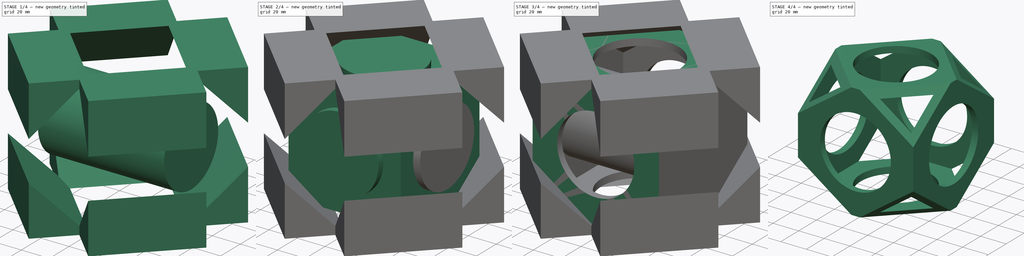
[diagram: build sequence overview — one tinted view per stage of 4, left to right]
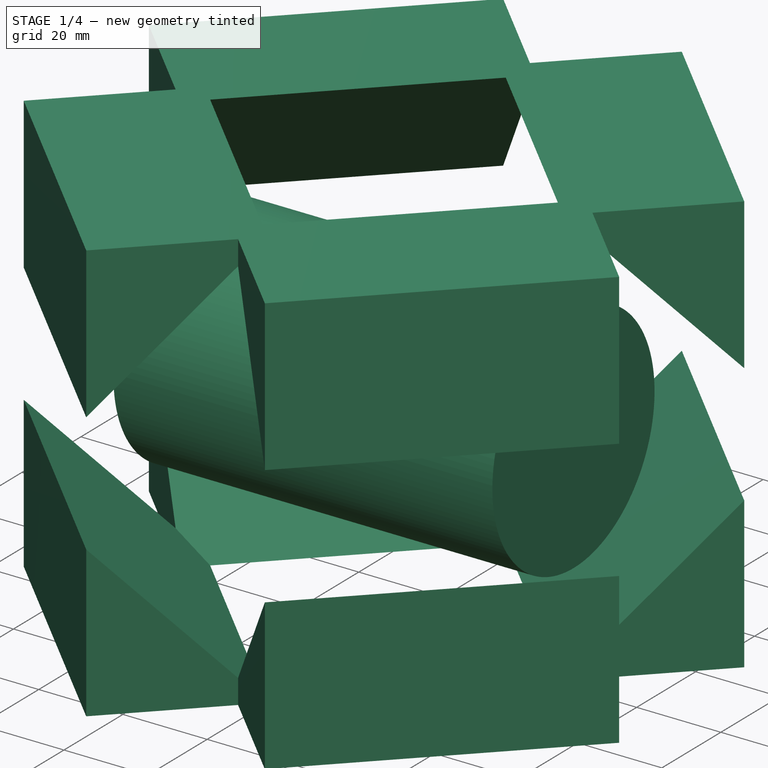
[diagram: stage 1 of 4 — iso view after this stage's code; geometry added in this stage tinted green]
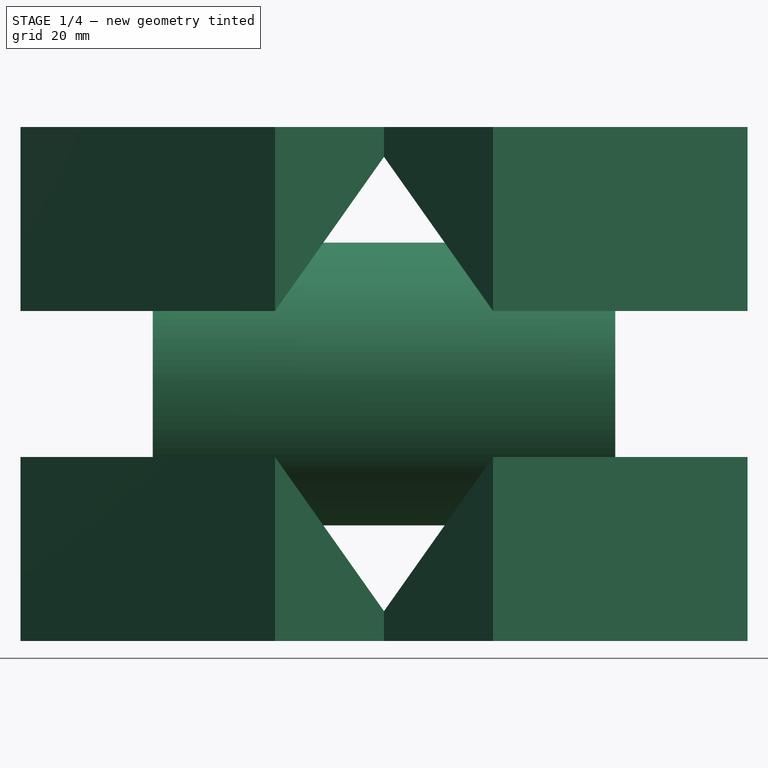
[diagram: stage 1 of 4 — front view after this stage's code; geometry added in this stage tinted green]
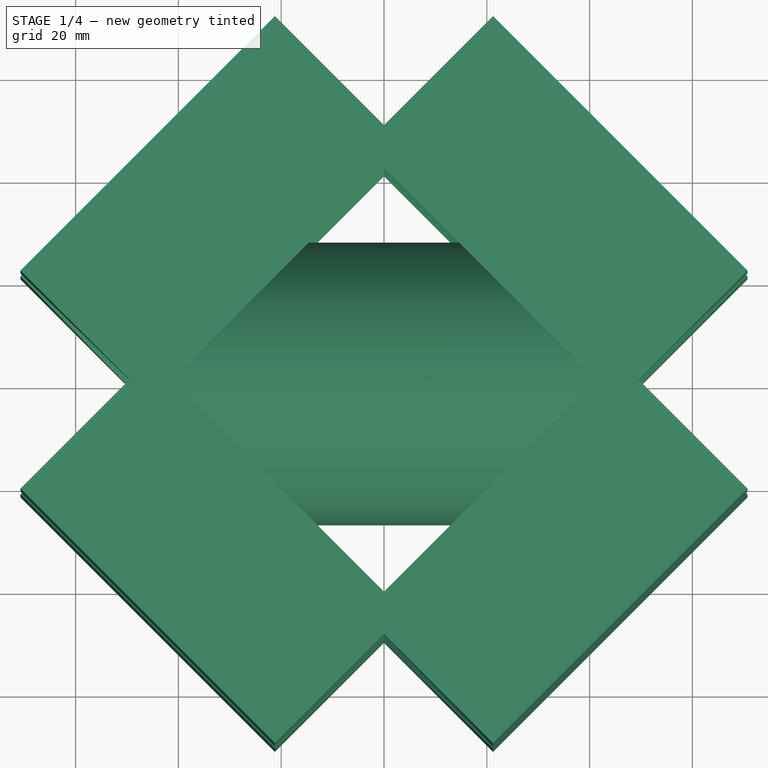
[diagram: stage 1 of 4 — top view after this stage's code; geometry added in this stage tinted green]
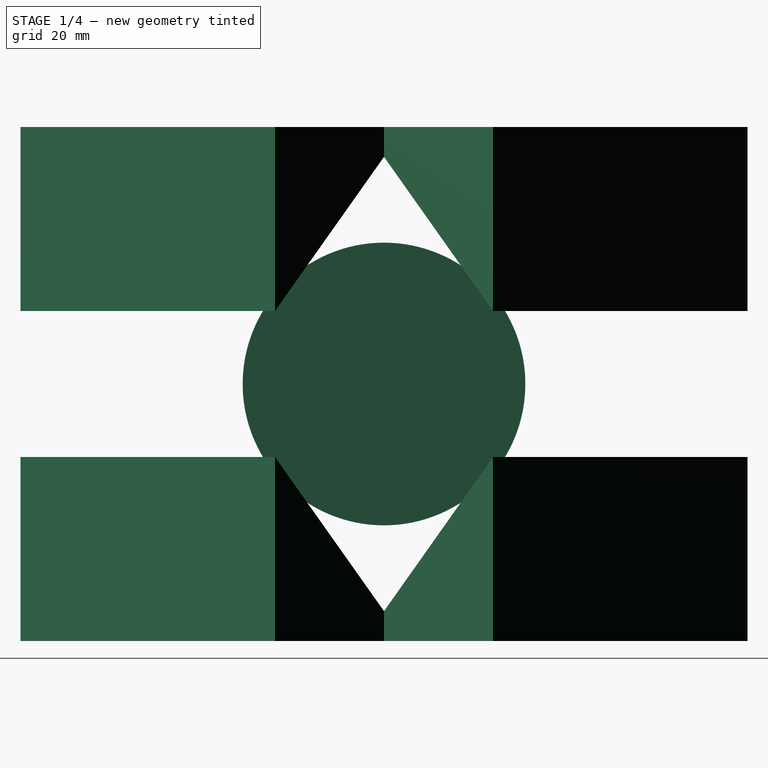
[diagram: stage 1 of 4 — right view after this stage's code; geometry added in this stage tinted green]
FCSTD DOCUMENT  (FreeCAD 0.16R6700 (Git))
Label: Aula02
License: FreeArt
LicenseURL: http://artlibre.org/licence/lal
objects: Part::Cut×6, Part::Cylinder×3, Part::Box×2, Sketcher::SketchObject×2, PartDesign::Pad×2
note: 17 computed .brp shape members not serialized (recipe doc carries the construction recipe); baked Part::Feature solids carry a one-line shape summary decoded from their .brp

FEATURE [Part::Cylinder] Cylinder002
  Angle = 360
  Height = 90
  Placement = pos=(-45,0,0) rot=(0,1,0;1.5708rad)
  Radius = 27.5
FEATURE [Sketcher::SketchObject] Sketch
  Placement = pos=(0,0,0) rot=(-0.862856,-0.357407,-0.357407;4.56541rad)
  sketch-geometry (12):
    g0: LineSegment StartX=-65 StartY=14.196 StartZ=0 EndX=-65 EndY=50 EndZ=0
    g1: LineSegment StartX=-65 StartY=50 StartZ=0 EndX=-29.196 EndY=50 EndZ=0
    g2: LineSegment StartX=-29.196 StartY=50 StartZ=0 EndX=-65 EndY=14.196 EndZ=0
    g3: LineSegment StartX=29.196 StartY=50 StartZ=0 EndX=65 EndY=50 EndZ=0
    g4: LineSegment StartX=65 StartY=50 StartZ=0 EndX=65 EndY=14.196 EndZ=0
    g5: LineSegment StartX=65 StartY=14.196 StartZ=0 EndX=29.196 EndY=50 EndZ=0
    g6: LineSegment StartX=-65 StartY=-14.196 StartZ=0 EndX=-65 EndY=-50 EndZ=0
    g7: LineSegment StartX=-65 StartY=-50 StartZ=0 EndX=-29.196 EndY=-50 EndZ=0
    g8: LineSegment StartX=-29.196 StartY=-50 StartZ=0 EndX=-65 EndY=-14.196 EndZ=0
    g9: LineSegment StartX=29.196 StartY=-50 StartZ=0 EndX=65 EndY=-50 EndZ=0
    g10: LineSegment StartX=65 StartY=-50 StartZ=0 EndX=65 EndY=-14.196 EndZ=0
    g11: LineSegment StartX=65 StartY=-14.196 StartZ=0 EndX=29.196 EndY=-50 EndZ=0
  constraints (33):
    c: Coincident(g0,g1)
    c: Horizontal(g1)
    c: Coincident(g1,g2)
    c: Coincident(g2,g0)
    c: Horizontal(g3)
    c: Coincident(g3,g4)
    c: Vertical(g4)
    c: Coincident(g4,g5)
    c: Coincident(g5,g3)
    c: Vertical(g6)
    c: Coincident(g6,g7)
    c: Horizontal(g7)
    c: Coincident(g7,g8)
    c: Horizontal(g9)
    c: Coincident(g9,g10)
    c: Vertical(g10)
    c: Coincident(g10,g11)
    c: Coincident(g11,g9)
    c: Vertical(g0)
    c: Symmetric(g0,g6,g-1)
    c: Equal(g6,g0)
    c: Equal(g0,g1)
    c: Equal(g1,g3)
    c: Equal(g3,g4)
    c: Equal(g4,g10)
    c: Equal(g10,g9)
    c: Equal(g9,g7)
    c: Coincident(g8,g6)
    c: Symmetric(g0,g3,g-2)
    c: Symmetric(g6,g9,g-2)
    c: DistanceX(g0,g3) = 130
    c: DistanceY(g6,g0) = 100
    c: Distance(g-1,g2) = 56
FEATURE [PartDesign::Pad] Pad
  Length = 70
  Length2 = 100
  Midplane = true
  Placement = pos=(0,0,0) rot=(-0.862856,-0.357407,-0.357407;4.56541rad)
  Sketch = -> Sketch
  Type = 0
FEATURE [Sketcher::SketchObject] Sketch001
  Placement = pos=(0,0,0) rot=(0.862856,-0.357407,-0.357407;1.71777rad)
  sketch-geometry (12):
    g0: LineSegment StartX=-65 StartY=14.196 StartZ=0 EndX=-65 EndY=50 EndZ=0
    g1: LineSegment StartX=-65 StartY=50 StartZ=0 EndX=-29.196 EndY=50 EndZ=0
    g2: LineSegment StartX=-29.196 StartY=50 StartZ=0 EndX=-65 EndY=14.196 EndZ=0
    g3: LineSegment StartX=29.196 StartY=50 StartZ=0 EndX=65 EndY=50 EndZ=0
    g4: LineSegment StartX=65 StartY=50 StartZ=0 EndX=65 EndY=14.196 EndZ=0
    g5: LineSegment StartX=65 StartY=14.196 StartZ=0 EndX=29.196 EndY=50 EndZ=0
    g6: LineSegment StartX=-65 StartY=-14.196 StartZ=0 EndX=-65 EndY=-50 EndZ=0
    g7: LineSegment StartX=-65 StartY=-50 StartZ=0 EndX=-29.196 EndY=-50 EndZ=0
    g8: LineSegment StartX=-29.196 StartY=-50 StartZ=0 EndX=-65 EndY=-14.196 EndZ=0
    g9: LineSegment StartX=29.196 StartY=-50 StartZ=0 EndX=65 EndY=-50 EndZ=0
    g10: LineSegment StartX=65 StartY=-50 StartZ=0 EndX=65 EndY=-14.196 EndZ=0
    g11: LineSegment StartX=65 StartY=-14.196 StartZ=0 EndX=29.196 EndY=-50 EndZ=0
  constraints (33):
    c: Coincident(g0,g1)
    c: Horizontal(g1)
    c: Coincident(g1,g2)
    c: Coincident(g2,g0)
    c: Horizontal(g3)
    c: Coincident(g3,g4)
    c: Vertical(g4)
    c: Coincident(g4,g5)
    c: Coincident(g5,g3)
    c: Vertical(g6)
    c: Coincident(g6,g7)
    c: Horizontal(g7)
    c: Coincident(g7,g8)
    c: Horizontal(g9)
    c: Coincident(g9,g10)
    c: Vertical(g10)
    c: Coincident(g10,g11)
    c: Coincident(g11,g9)
    c: Vertical(g0)
    c: Symmetric(g0,g6,g-1)
    c: Equal(g6,g0)
    c: Equal(g0,g1)
    c: Equal(g1,g3)
    c: Equal(g3,g4)
    c: Equal(g4,g10)
    c: Equal(g10,g9)
    c: Equal(g9,g7)
    c: Coincident(g8,g6)
    c: Symmetric(g0,g3,g-2)
    c: Symmetric(g6,g9,g-2)
    c: DistanceX(g0,g3) = 130
    c: DistanceY(g6,g0) = 100
    c: Distance(g-1,g2) = 56
FEATURE [PartDesign::Pad] Pad001
  Length = 70
  Length2 = 100
  Midplane = true
  Placement = pos=(0,0,0) rot=(0.862856,-0.357407,-0.357407;1.71777rad)
  Sketch = -> Sketch001
  Type = 0
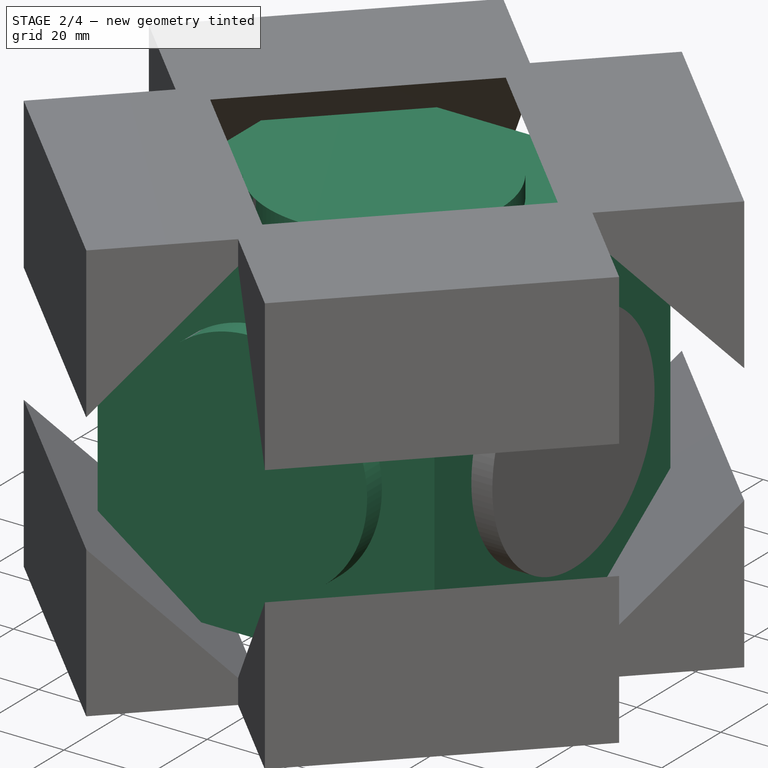
[diagram: stage 2 of 4 — iso view after this stage's code; geometry added in this stage tinted green]
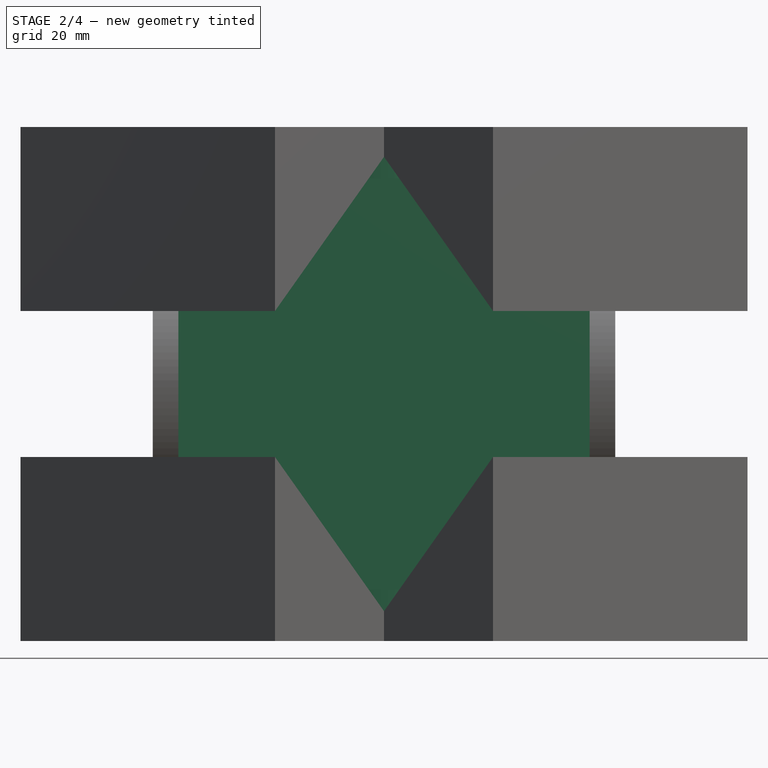
[diagram: stage 2 of 4 — front view after this stage's code; geometry added in this stage tinted green]
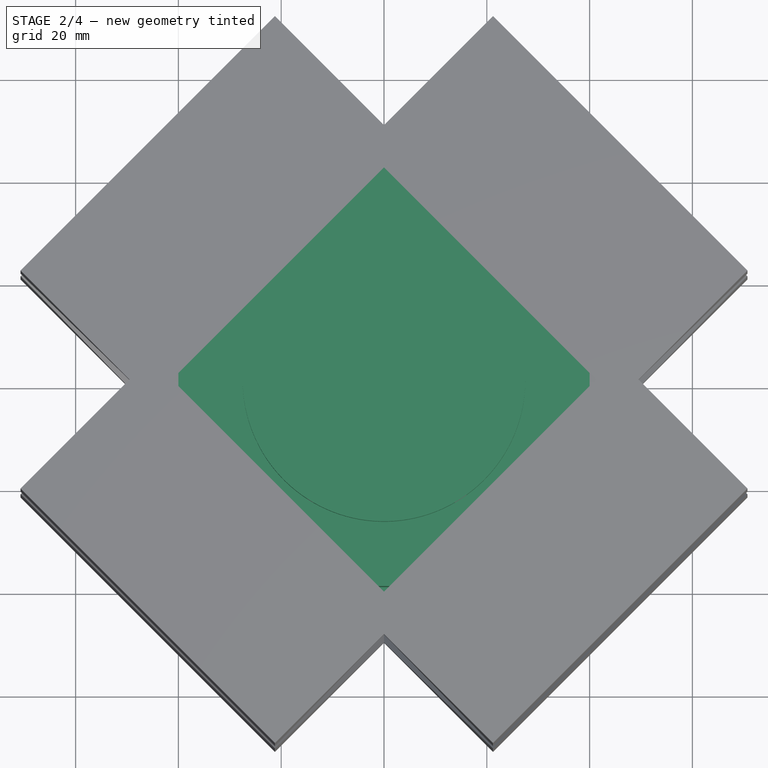
[diagram: stage 2 of 4 — top view after this stage's code; geometry added in this stage tinted green]
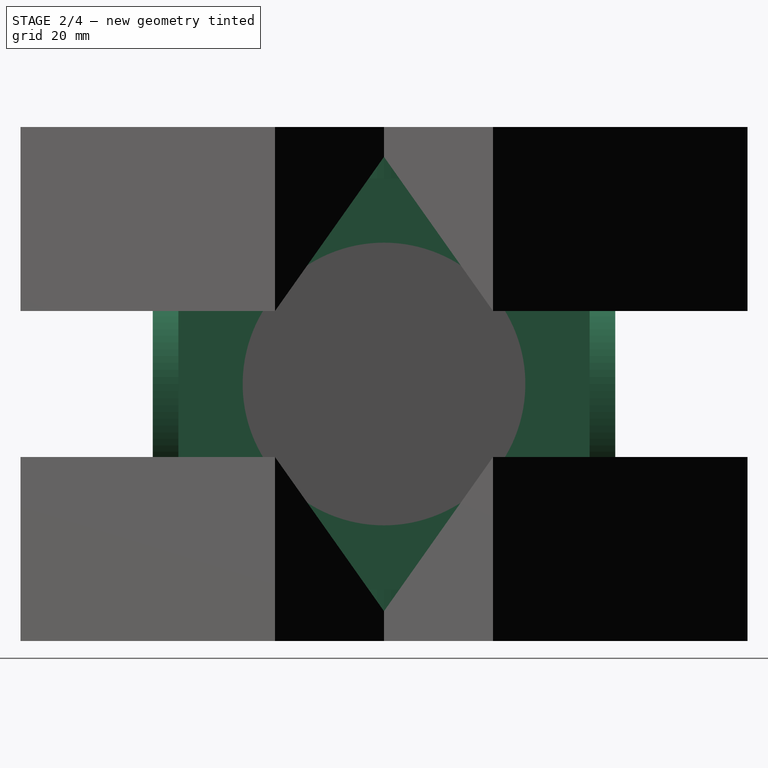
[diagram: stage 2 of 4 — right view after this stage's code; geometry added in this stage tinted green]
FEATURE [Part::Box] Box001  label="Cubo Interno"
  Height = 80
  Length = 80
  Placement = pos=(-40,-40,-40) rot=(0,0,1;0rad)
  Width = 80
FEATURE [Part::Cylinder] Cylinder
  Angle = 360
  Height = 90
  Placement = pos=(0,0,-45) rot=(0,0,1;0rad)
  Radius = 27.5
FEATURE [Part::Cylinder] Cylinder001
  Angle = 360
  Height = 90
  Placement = pos=(0,45,0) rot=(1,0,0;1.5708rad)
  Radius = 27.5
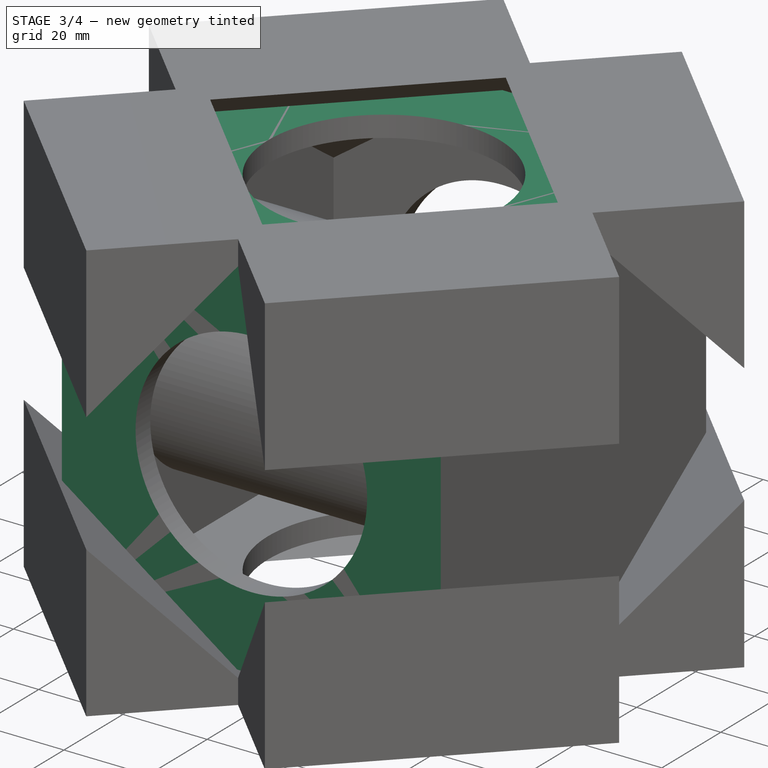
[diagram: stage 3 of 4 — iso view after this stage's code; geometry added in this stage tinted green]
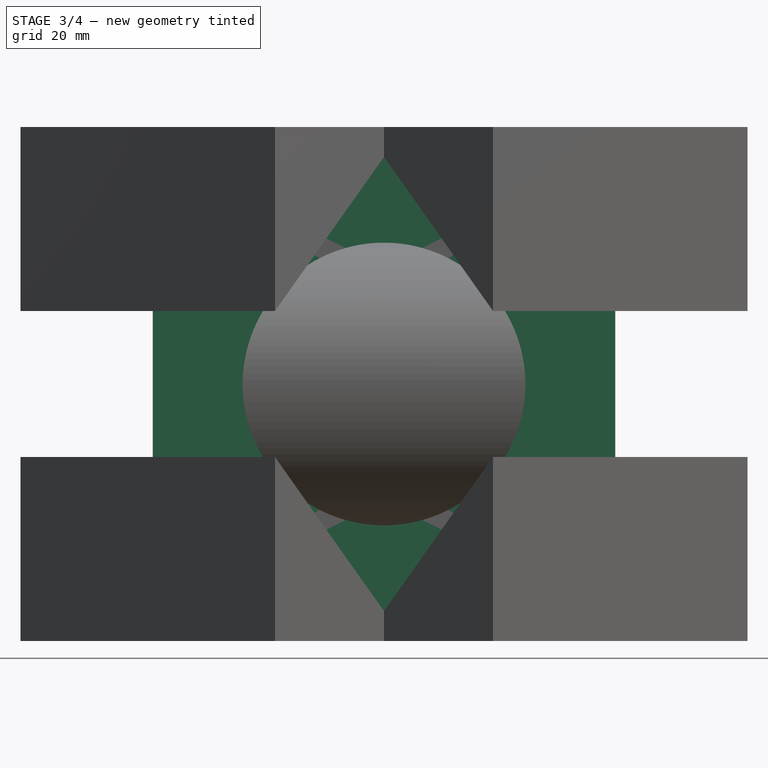
[diagram: stage 3 of 4 — front view after this stage's code; geometry added in this stage tinted green]
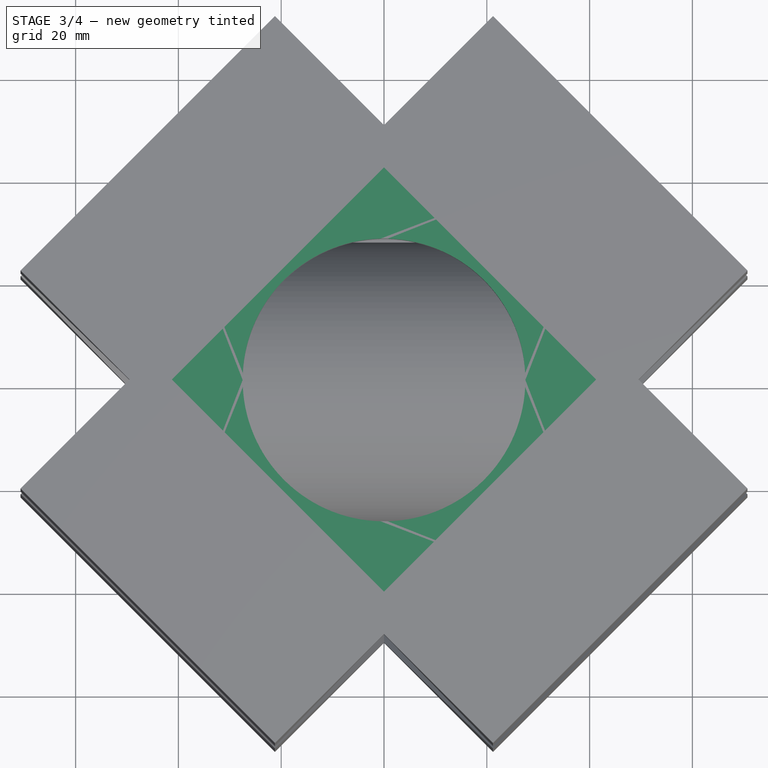
[diagram: stage 3 of 4 — top view after this stage's code; geometry added in this stage tinted green]
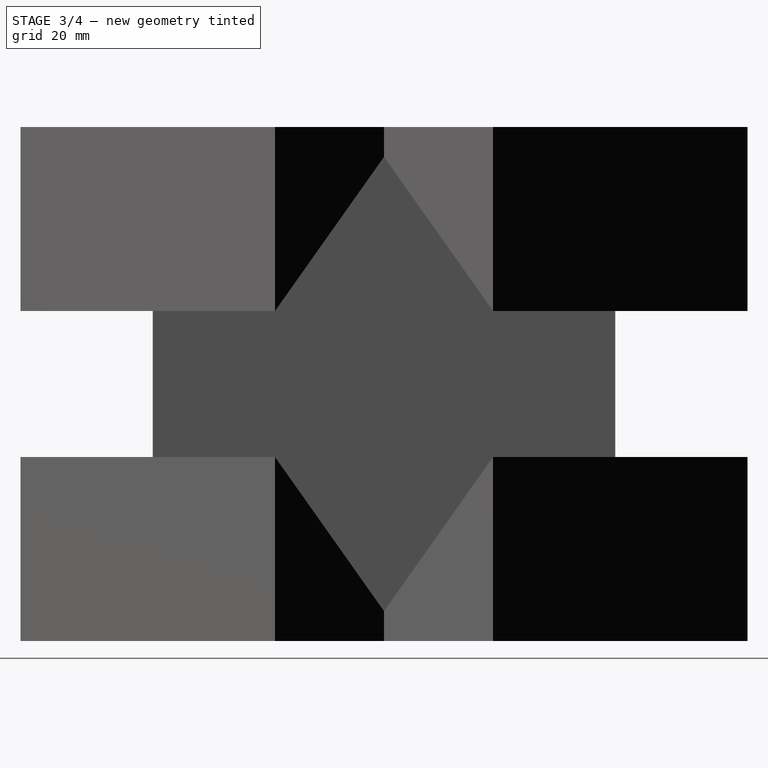
[diagram: stage 3 of 4 — right view after this stage's code; geometry added in this stage tinted green]
FEATURE [Part::Box] Box  label="Cubo Externo"
  Height = 90
  Length = 90
  Placement = pos=(-45,-45,-45) rot=(0,0,1;0rad)
  Width = 90
FEATURE [Part::Cut] Cut
  Base = -> Box
  Tool = -> Box001
FEATURE [Part::Cut] Cut001
  Base = -> Cut
  Tool = -> Cylinder
FEATURE [Part::Cut] Cut002
  Base = -> Cut001
  Tool = -> Cylinder001
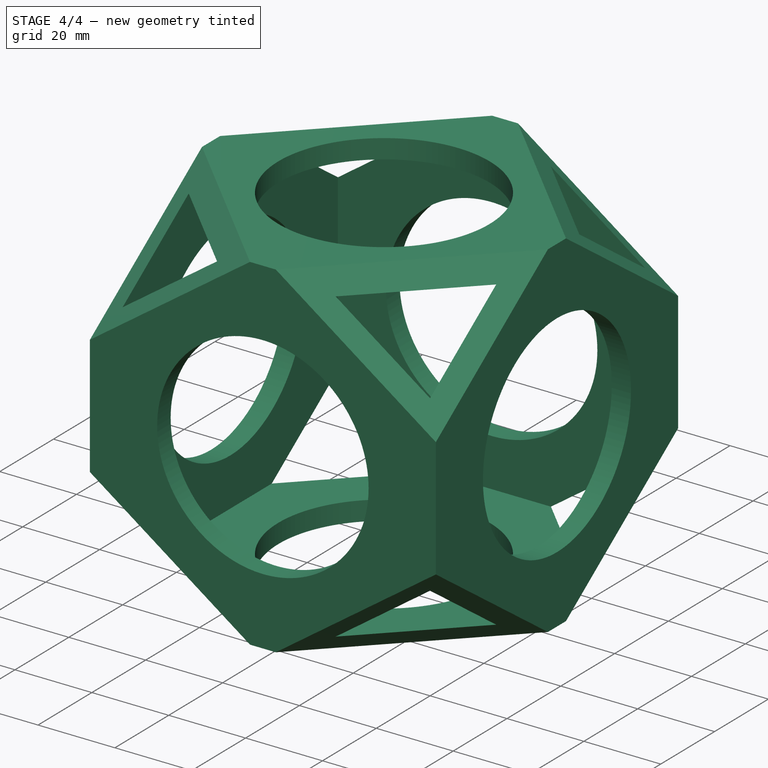
[diagram: stage 4 of 4 — iso view after this stage's code; geometry added in this stage tinted green]
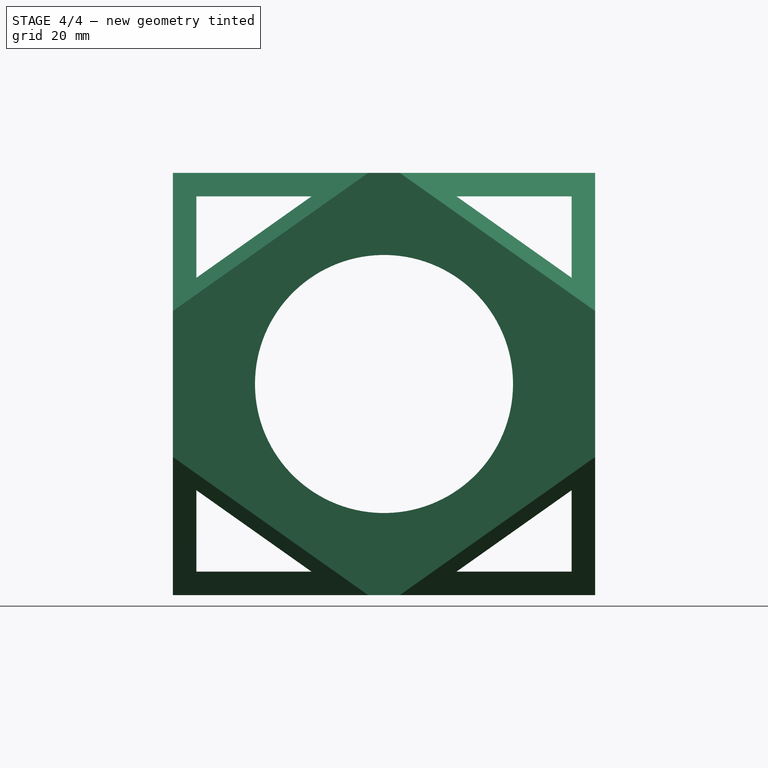
[diagram: stage 4 of 4 — front view after this stage's code; geometry added in this stage tinted green]
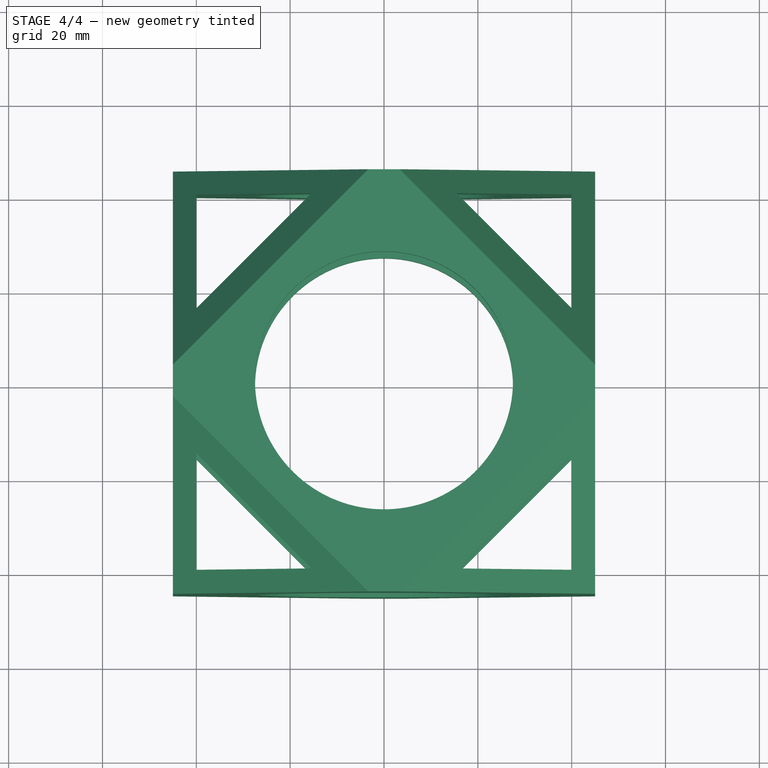
[diagram: stage 4 of 4 — top view after this stage's code; geometry added in this stage tinted green]
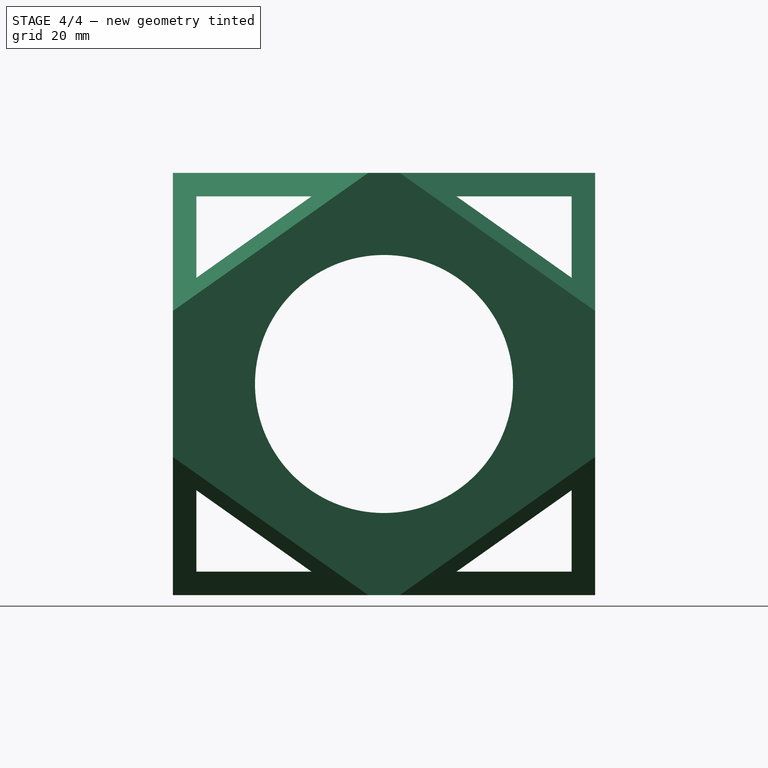
[diagram: stage 4 of 4 — right view after this stage's code; geometry added in this stage tinted green]
FEATURE [Part::Cut] Cut003
  Base = -> Cut002
  Tool = -> Cylinder002
FEATURE [Part::Cut] Cut004
  Base = -> Cut003
  Tool = -> Pad
FEATURE [Part::Cut] Cut005
  Base = -> Cut004
  Tool = -> Pad001
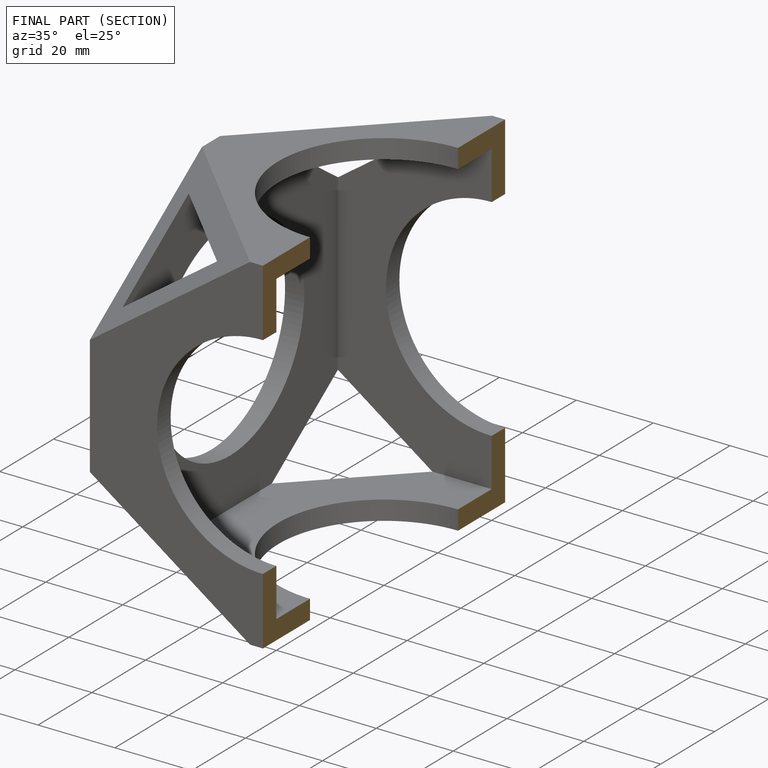
[diagram: finished part — half-section view (interior)]
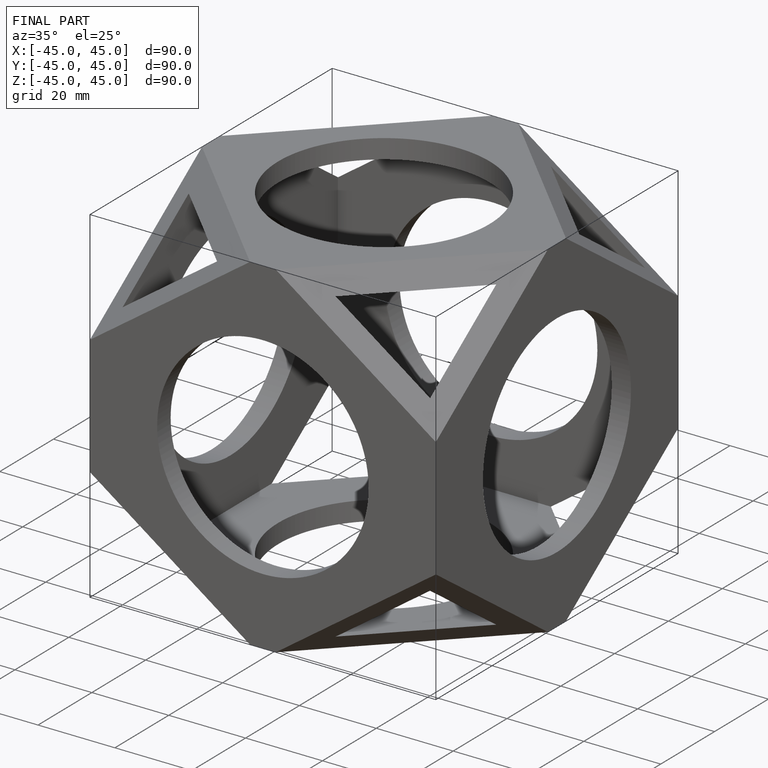
[diagram: finished part — iso view with bounding-box wireframe]
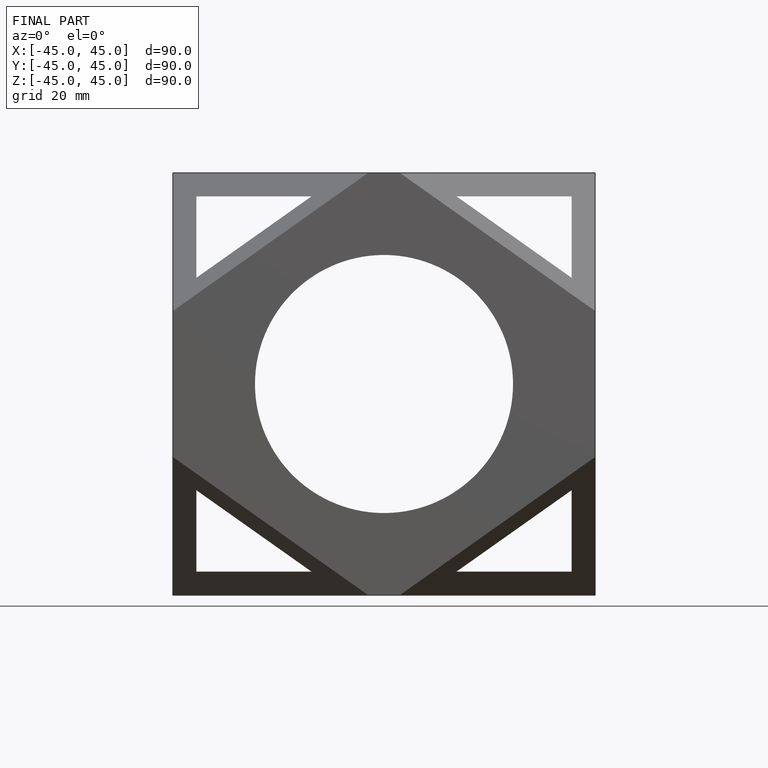
[diagram: finished part — front view with bounding-box wireframe]
